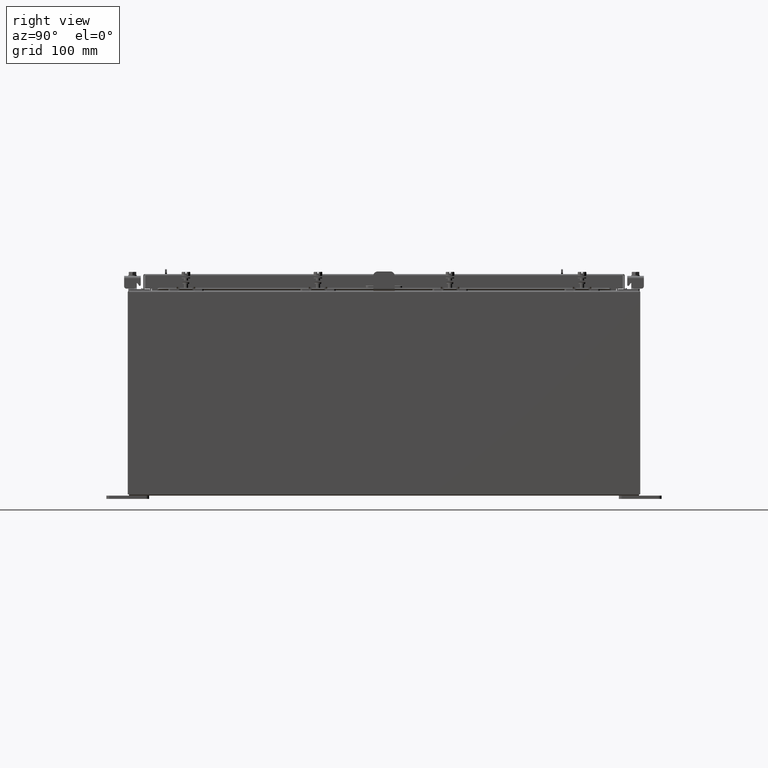
[diagram: clean part render]
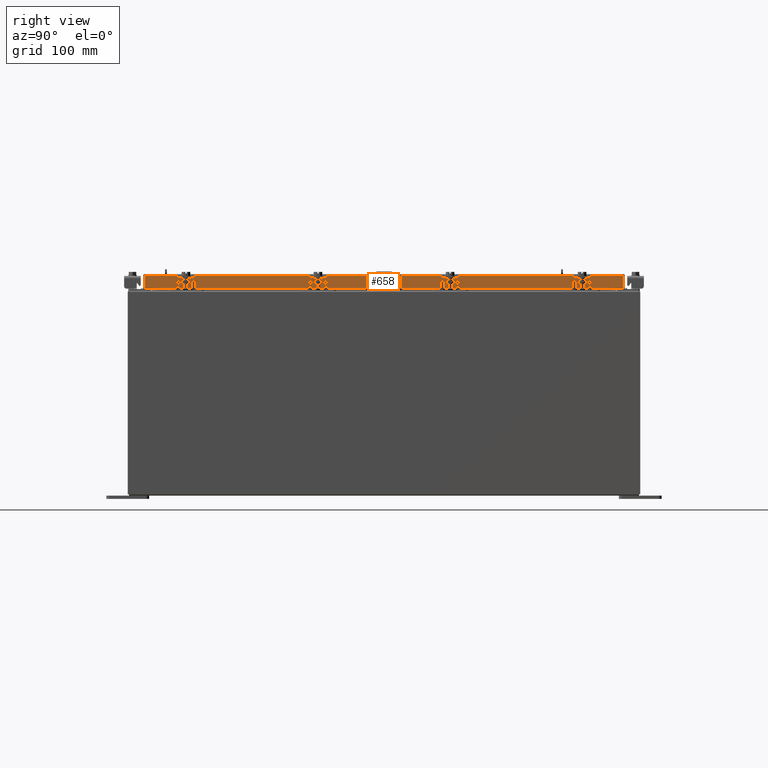
[diagram: same view with one face highlighted and labeled with its STEP entity id]
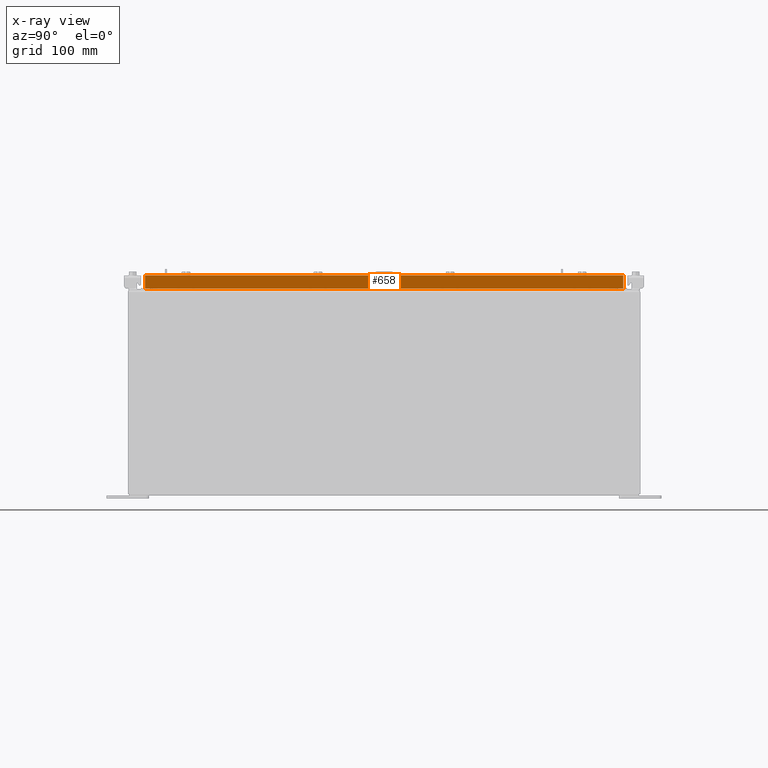
[diagram: x-ray of the same camera — body ghosted, the highlighted face saturated]
A machine part, right view. The second image highlights one B-rep face of the part: STEP entity #658.
The next image is the same camera in x-ray: the body ghosted, the highlighted face saturated — about 0% of this face is hidden behind the body in this view.
In plain terms, the highlighted planar face has unit normal (1, 0, 0).
Its self-contained STEP definition (entity closure, byte-faithful):
#175 = VECTOR ( 'NONE', #12083, 39.37007874015748100 ) ;
#658 = ADVANCED_FACE ( 'NONE', ( #11174 ), #1223, .T. ) ;
#1147 = LINE ( 'NONE', #3574, #5851 ) ;
#1223 = PLANE ( 'NONE',  #21871 ) ;
#1916 = DIRECTION ( 'NONE',  ( 0.0000000000000000000, -1.000000000000000000, 0.0000000000000000000 ) ) ;
#2831 = CARTESIAN_POINT ( 'NONE',  ( 11.07799999999999900, -14.00515786437626900, -0.07469999999999978000 ) ) ;
#3574 = CARTESIAN_POINT ( 'NONE',  ( 11.07800000000000300, -14.09399999999999900, -0.8499999999999996400 ) ) ;
#3765 = LINE ( 'NONE', #12630, #21685 ) ;
#4559 = EDGE_CURVE ( 'NONE', #15604, #8111, #9649, .T. ) ;
#5417 = CARTESIAN_POINT ( 'NONE',  ( 11.07799999999999900, 0.0000000000000000000, -0.08770000000000007000 ) ) ;
#5851 = VECTOR ( 'NONE', #8950, 39.37007874015748100 ) ;
#5950 = CARTESIAN_POINT ( 'NONE',  ( 11.07799999999999200, 13.25515786437627100, -0.8500000000000018700 ) ) ;
#5982 = VECTOR ( 'NONE', #9017, 39.37007874015748100 ) ;
#6531 = ORIENTED_EDGE ( 'NONE', *, *, #4559, .F. ) ;
#6875 = ORIENTED_EDGE ( 'NONE', *, *, #11477, .T. ) ;
#7081 = EDGE_CURVE ( 'NONE', #20089, #15604, #12907, .T. ) ;
#7207 = VERTEX_POINT ( 'NONE', #19230 ) ;
#7281 = CARTESIAN_POINT ( 'NONE',  ( 11.07799999999999900, 14.00515786437626500, -0.08770000000000007000 ) ) ;
#7702 = CARTESIAN_POINT ( 'NONE',  ( 11.07800000000000300, -14.00515786437626400, -0.8499999999999996400 ) ) ;
#8054 = CARTESIAN_POINT ( 'NONE',  ( 11.07799999999999900, 14.00515786437626900, 1.292858714020875700E-013 ) ) ;
#8111 = VERTEX_POINT ( 'NONE', #15599 ) ;
#8152 = LINE ( 'NONE', #8054, #17115 ) ;
#8945 = ORIENTED_EDGE ( 'NONE', *, *, #7081, .F. ) ;
#8950 = DIRECTION ( 'NONE',  ( 0.0000000000000000000, -1.000000000000000000, 0.0000000000000000000 ) ) ;
#9017 = DIRECTION ( 'NONE',  ( 0.0000000000000000000, -1.000000000000000000, 0.0000000000000000000 ) ) ;
#9394 = DIRECTION ( 'NONE',  ( 2.818880942772360100E-015, 0.0000000000000000000, -1.000000000000000000 ) ) ;
#9633 = LINE ( 'NONE', #5417, #5982 ) ;
#9649 = LINE ( 'NONE', #2831, #175 ) ;
#9865 = DIRECTION ( 'NONE',  ( -2.818880942772360100E-015, -6.982962677686265900E-015, 1.000000000000000000 ) ) ;
#9998 = DIRECTION ( 'NONE',  ( 0.0000000000000000000, -1.000000000000000000, 0.0000000000000000000 ) ) ;
#11174 = FACE_OUTER_BOUND ( 'NONE', #16090, .T. ) ;
#11477 = EDGE_CURVE ( 'NONE', #7207, #21323, #8152, .T. ) ;
#11538 = ORIENTED_EDGE ( 'NONE', *, *, #13240, .F. ) ;
#12083 = DIRECTION ( 'NONE',  ( -2.818880942772360100E-015, -6.982962677686265900E-015, 1.000000000000000000 ) ) ;
#12630 = CARTESIAN_POINT ( 'NONE',  ( 11.07799999999999200, 13.25515786437627200, -0.8500000000000018700 ) ) ;
#12907 = LINE ( 'NONE', #20727, #13462 ) ;
#13240 = EDGE_CURVE ( 'NONE', #7207, #16317, #1147, .T. ) ;
#13462 = VECTOR ( 'NONE', #9998, 39.37007874015748100 ) ;
#15599 = CARTESIAN_POINT ( 'NONE',  ( 11.07799999999999900, -14.00515786437626900, -0.08770000000000007000 ) ) ;
#15604 = VERTEX_POINT ( 'NONE', #7702 ) ;
#16080 = CARTESIAN_POINT ( 'NONE',  ( 11.07799999999999200, -13.25515786437626400, -0.8500000000000018700 ) ) ;
#16090 = EDGE_LOOP ( 'NONE', ( #6531, #8945, #16375, #11538, #6875, #22584 ) ) ;
#16317 = VERTEX_POINT ( 'NONE', #5950 ) ;
#16375 = ORIENTED_EDGE ( 'NONE', *, *, #22703, .F. ) ;
#17115 = VECTOR ( 'NONE', #9865, 39.37007874015748100 ) ;
#19230 = CARTESIAN_POINT ( 'NONE',  ( 11.07800000000000300, 14.00515786437627200, -0.8499999999999996400 ) ) ;
#20089 = VERTEX_POINT ( 'NONE', #16080 ) ;
#20727 = CARTESIAN_POINT ( 'NONE',  ( 11.07800000000000300, -14.09399999999999900, -0.8499999999999996400 ) ) ;
#21323 = VERTEX_POINT ( 'NONE', #7281 ) ;
#21403 = CARTESIAN_POINT ( 'NONE',  ( 11.07799999999999900, 0.0000000000000000000, 3.148837674004379000E-014 ) ) ;
#21685 = VECTOR ( 'NONE', #1916, 39.37007874015748100 ) ;
#21871 = AXIS2_PLACEMENT_3D ( 'NONE', #21403, #22752, #9394 ) ;
#22559 = EDGE_CURVE ( 'NONE', #21323, #8111, #9633, .T. ) ;
#22584 = ORIENTED_EDGE ( 'NONE', *, *, #22559, .T. ) ;
#22703 = EDGE_CURVE ( 'NONE', #16317, #20089, #3765, .T. ) ;
#22752 = DIRECTION ( 'NONE',  ( 1.000000000000000000, 0.0000000000000000000, 2.818880942772360100E-015 ) ) ;